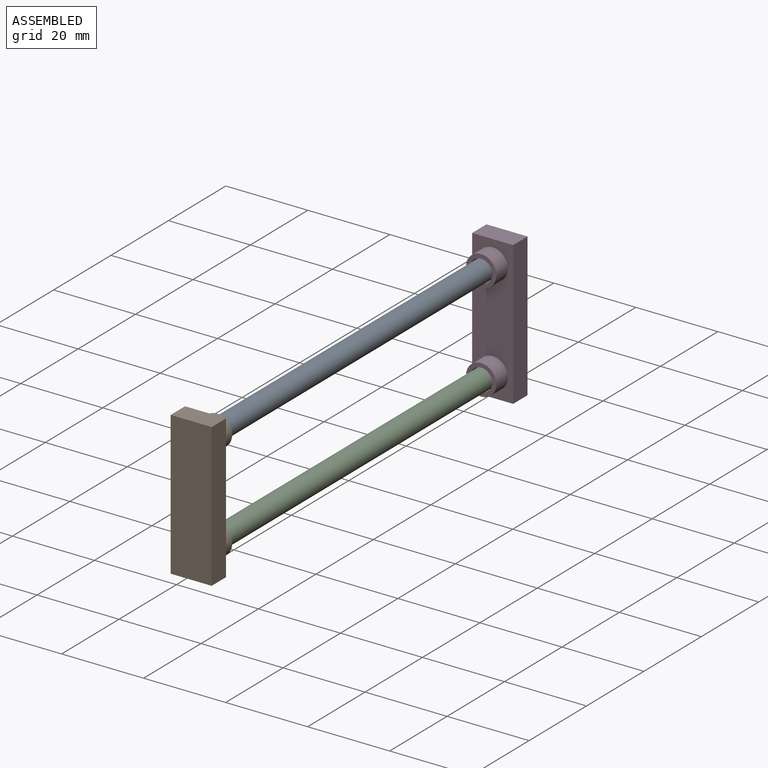
[diagram: assembled view]
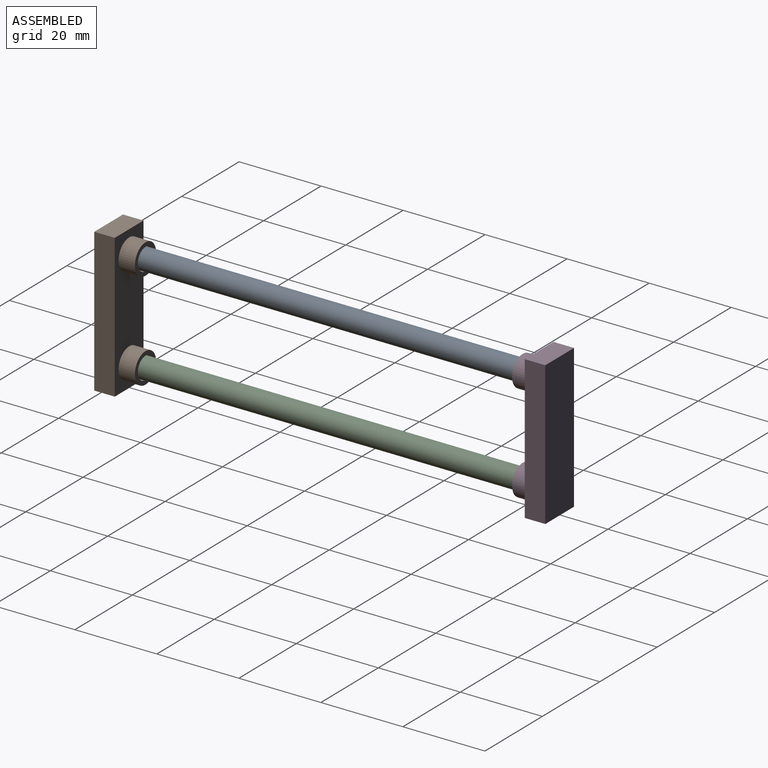
[diagram: assembled view, second angle]
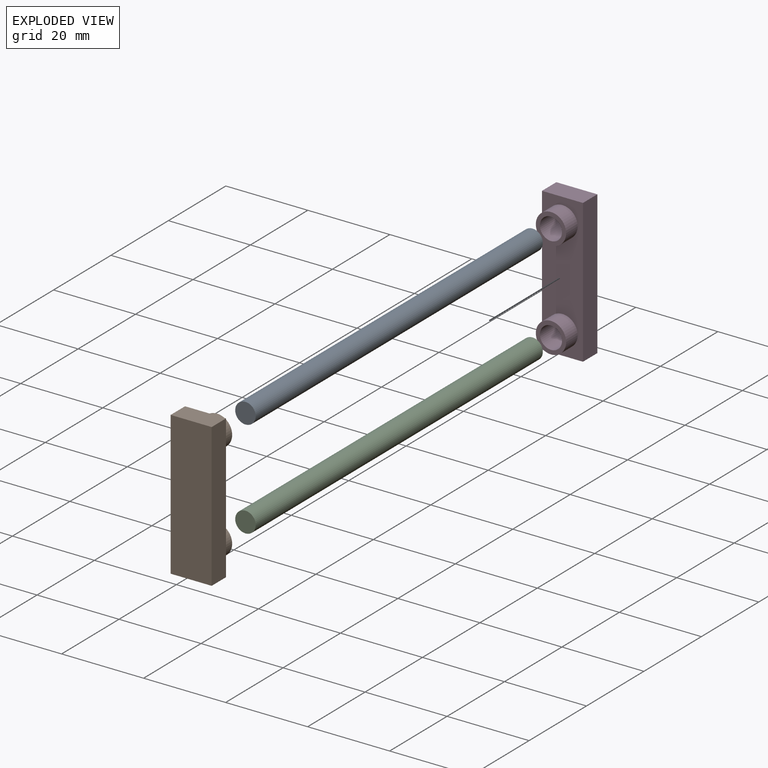
[diagram: exploded view]
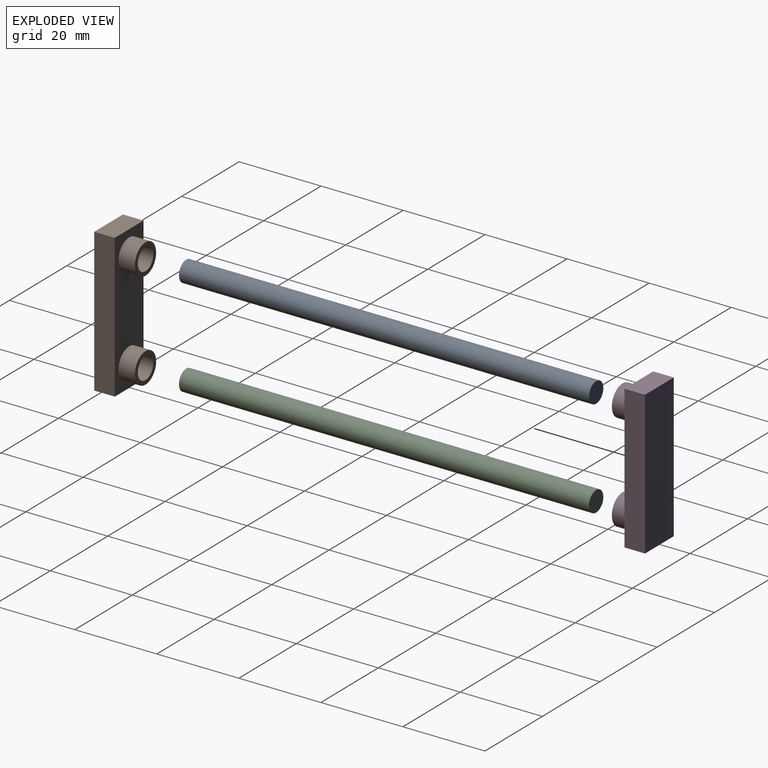
[diagram: exploded view, second angle]
ASSEMBLY  parts=4 mates=3
PART A: 3 faces, bbox 5x5x100 mm
  f0: cylinder r=2.5mm len=100mm, axis (0,0,-1), area 1570.8mm2, adj f1,f2
  f1: plane 5x5mm, normal (0,0,1), area 19.6mm2, adj f0
  f2: plane 5x5mm, normal (0,0,-1), area 19.6mm2, adj f0
PART B: 14 faces, bbox 10x35x9 mm
  f0: plane 10x5mm, normal (0,-1,0), area 50mm2, adj f1,f3,f4,f5
  f1: plane 35x5mm, normal (1,0,0), area 175mm2, adj f0,f2,f4,f5
  f2: plane 10x5mm, normal (0,1,0), area 50mm2, adj f1,f3,f4,f5
  f3: plane 35x5mm, normal (-1,0,0), area 175mm2, adj f0,f2,f4,f5
  f4: plane 35x10mm, normal (0,0,1), area 264mm2, adj f0,f1,f2,f3,f7,f11
  f5: plane 35x10mm, normal (0,0,-1), area 350mm2, adj f0,f1,f2,f3
  f6: cylinder r=2.7mm len=7mm, axis (0,0,-1), area 118.8mm2, adj f8,f9
  f7: cylinder r=3.7mm len=7.4mm, axis (0,0,-1), area 93mm2, adj f4,f8
  f8: plane 7.4x7.4mm, normal (0,0,1), area 20.1mm2, adj f6,f7
  f9: plane 5.4x5.4mm, normal (0,0,1), area 22.9mm2, adj f6
  f10: cylinder r=2.7mm len=7mm, axis (0,0,-1), area 118.8mm2, adj f12,f13
  f11: cylinder r=3.7mm len=7.4mm, axis (0,0,-1), area 93mm2, adj f4,f12
  f12: plane 7.4x7.4mm, normal (0,0,1), area 20.1mm2, adj f10,f11
  f13: plane 5.4x5.4mm, normal (0,0,1), area 22.9mm2, adj f10
PART C: same geometry as A
PART D: same geometry as B
PLACE A rot(axis=(1,0,0),90deg) t=(-31.73,65.5,-0.65)mm
PLACE B rot(axis=(-1,0,0),90deg) t=(3.25,-37.5,19.5)mm
PLACE C rot(axis=(1,0,0),90deg) t=(-31.73,65.5,-24.65)mm
PLACE D rot(axis=(1,0,0),90deg) t=(3.25,68.5,19.5)mm
MATE fastened A.f0 <-> B.f10  axis (0,-1,0) through (3.25,-34.5,31.5)mm
MATE fastened C.f0 <-> D.f10  axis (0,1,0) through (3.25,65.5,7.5)mm
MATE fastened C.f0 <-> B.f6  axis (0,1,0) through (3.25,-34.5,7.5)mm
